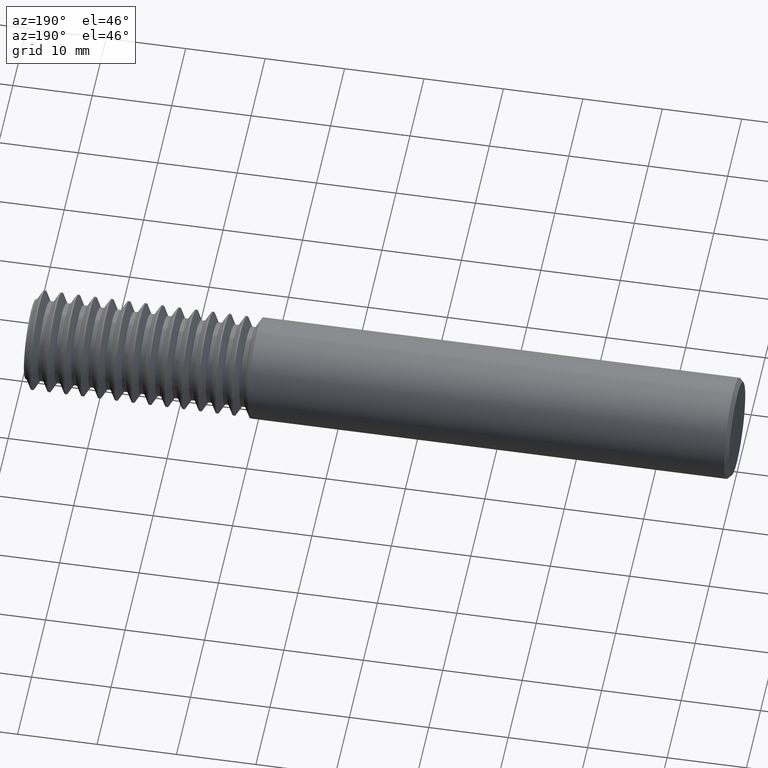
[diagram: clean part render]
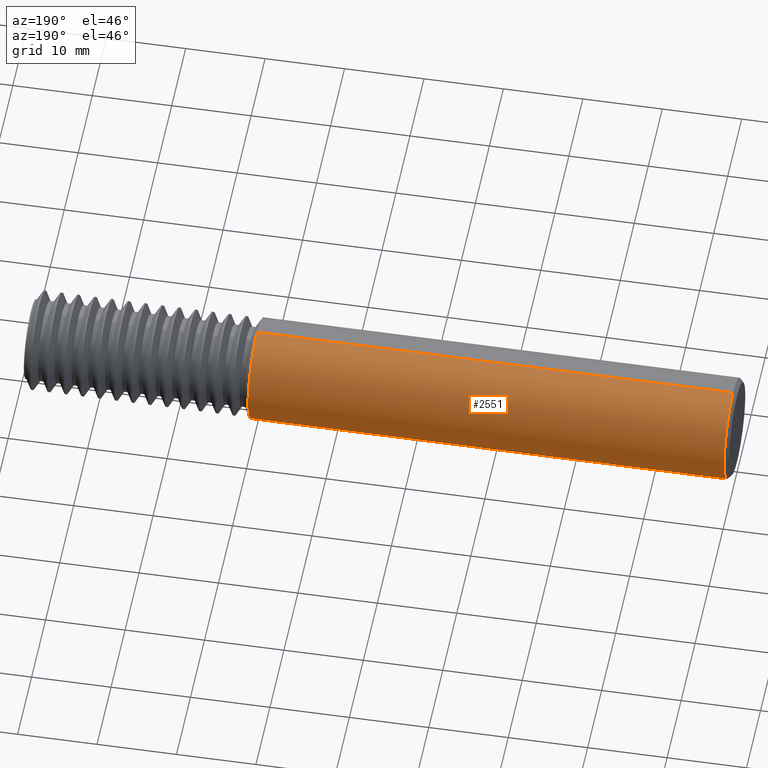
[diagram: same view with one face highlighted and labeled with its STEP entity id]
A machine part, auxiliary view. The second image highlights one B-rep face of the part: STEP entity #2551.
In plain terms, the highlighted cylindrical surface (partial cylindrical patch) has radius 6.3462 mm, axis along (-1, -0, -0).
Its self-contained STEP definition (entity closure, byte-faithful):
#261 = DIRECTION ( 'NONE',  ( 1.000000000000000000, 0.000000000000000000, 0.000000000000000000 ) ) ;
#484 = EDGE_CURVE ( 'NONE', #881, #715, #2847, .T. ) ;
#631 = ORIENTED_EDGE ( 'NONE', *, *, #1481, .F. ) ;
#680 = DIRECTION ( 'NONE',  ( 1.000000000000000000, 0.000000000000000000, 0.000000000000000000 ) ) ;
#715 = VERTEX_POINT ( 'NONE', #879 ) ;
#830 = AXIS2_PLACEMENT_3D ( 'NONE', #1172, #680, #2282 ) ;
#879 = CARTESIAN_POINT ( 'NONE',  ( 0.02000000000000009409, 0.000000000000000000, -0.2498499999999999888 ) ) ;
#881 = VERTEX_POINT ( 'NONE', #2369 ) ;
#948 = VECTOR ( 'NONE', #2392, 39.37007874015748143 ) ;
#1022 = CARTESIAN_POINT ( 'NONE',  ( 0.000000000000000000, 3.059780027669661931E-17, -0.2498499999999999888 ) ) ;
#1034 = CYLINDRICAL_SURFACE ( 'NONE', #1255, 0.2498499999999999888 ) ;
#1117 = LINE ( 'NONE', #2917, #1242 ) ;
#1172 = CARTESIAN_POINT ( 'NONE',  ( 0.02000000000000009409, 0.000000000000000000, 0.000000000000000000 ) ) ;
#1242 = VECTOR ( 'NONE', #2871, 39.37007874015748143 ) ;
#1255 = AXIS2_PLACEMENT_3D ( 'NONE', #2562, #2387, #2794 ) ;
#1292 = ORIENTED_EDGE ( 'NONE', *, *, #2696, .T. ) ;
#1397 = CARTESIAN_POINT ( 'NONE',  ( 0.02000000000000009409, 3.059780027669661931E-17, 0.2498499999999999888 ) ) ;
#1481 = EDGE_CURVE ( 'NONE', #1635, #2457, #1117, .T. ) ;
#1482 = FACE_OUTER_BOUND ( 'NONE', #2508, .T. ) ;
#1575 = AXIS2_PLACEMENT_3D ( 'NONE', #1846, #261, #2537 ) ;
#1635 = VERTEX_POINT ( 'NONE', #1654 ) ;
#1654 = CARTESIAN_POINT ( 'NONE',  ( 2.380061750876889537, 0.000000000000000000, 0.2498500000000000998 ) ) ;
#1846 = CARTESIAN_POINT ( 'NONE',  ( 2.380061750876889537, 0.000000000000000000, 0.000000000000000000 ) ) ;
#1998 = CIRCLE ( 'NONE', #1575, 0.2498499999999999888 ) ;
#2100 = CIRCLE ( 'NONE', #830, 0.2498499999999999888 ) ;
#2282 = DIRECTION ( 'NONE',  ( 0.000000000000000000, 0.000000000000000000, -1.000000000000000000 ) ) ;
#2369 = CARTESIAN_POINT ( 'NONE',  ( 2.380061750876889537, 3.059780027669663163E-17, -0.2498500000000000998 ) ) ;
#2370 = EDGE_CURVE ( 'NONE', #881, #1635, #1998, .T. ) ;
#2387 = DIRECTION ( 'NONE',  ( -1.000000000000000000, -0.000000000000000000, -0.000000000000000000 ) ) ;
#2392 = DIRECTION ( 'NONE',  ( -1.000000000000000000, -0.000000000000000000, -0.000000000000000000 ) ) ;
#2437 = ORIENTED_EDGE ( 'NONE', *, *, #484, .T. ) ;
#2457 = VERTEX_POINT ( 'NONE', #1397 ) ;
#2508 = EDGE_LOOP ( 'NONE', ( #2726, #2437, #1292, #631 ) ) ;
#2537 = DIRECTION ( 'NONE',  ( 0.000000000000000000, 0.000000000000000000, 1.000000000000000000 ) ) ;
#2551 = ADVANCED_FACE ( 'NONE', ( #1482 ), #1034, .T. ) ;
#2562 = CARTESIAN_POINT ( 'NONE',  ( 0.000000000000000000, 0.000000000000000000, 0.000000000000000000 ) ) ;
#2696 = EDGE_CURVE ( 'NONE', #715, #2457, #2100, .T. ) ;
#2726 = ORIENTED_EDGE ( 'NONE', *, *, #2370, .F. ) ;
#2794 = DIRECTION ( 'NONE',  ( 0.000000000000000000, 0.000000000000000000, 1.000000000000000000 ) ) ;
#2847 = LINE ( 'NONE', #1022, #948 ) ;
#2871 = DIRECTION ( 'NONE',  ( -1.000000000000000000, -0.000000000000000000, -0.000000000000000000 ) ) ;
#2917 = CARTESIAN_POINT ( 'NONE',  ( 0.000000000000000000, 0.000000000000000000, 0.2498499999999999888 ) ) ;